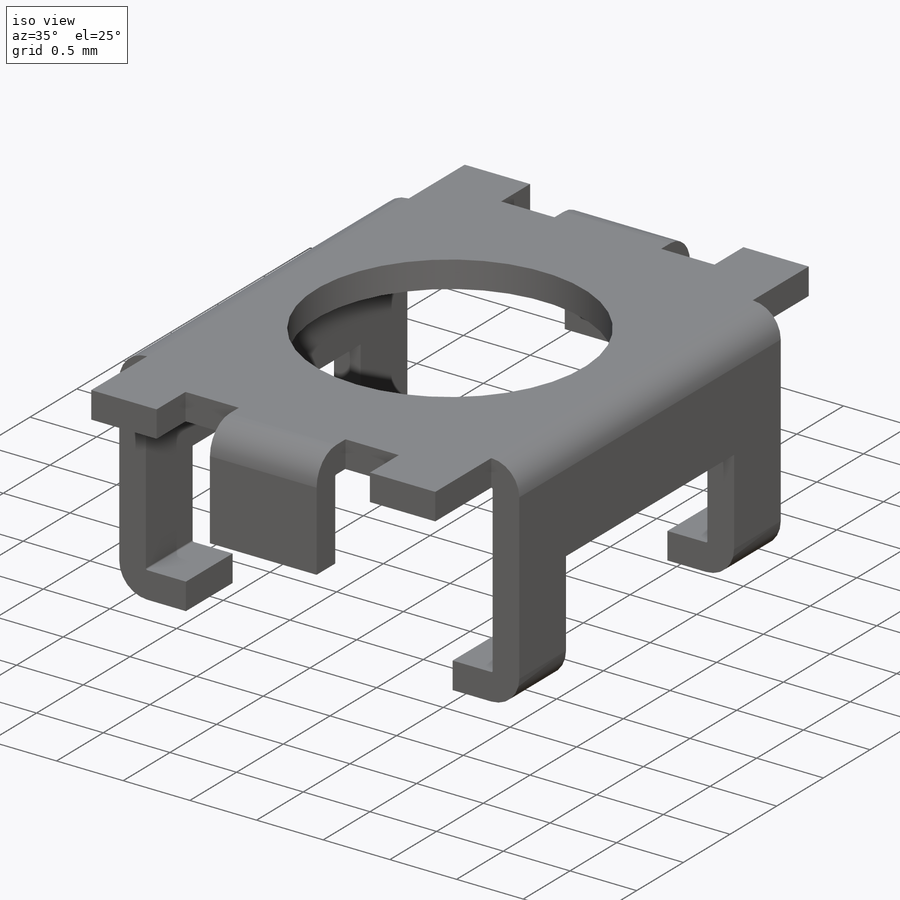
[diagram: iso view]
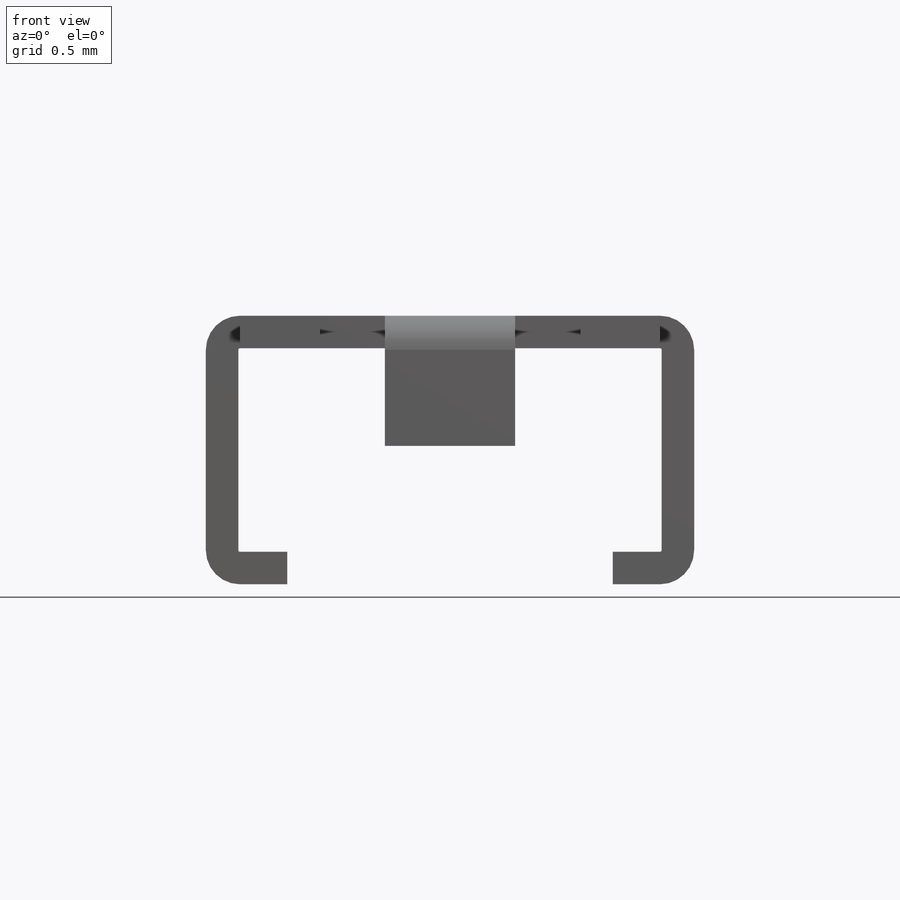
[diagram: front view]
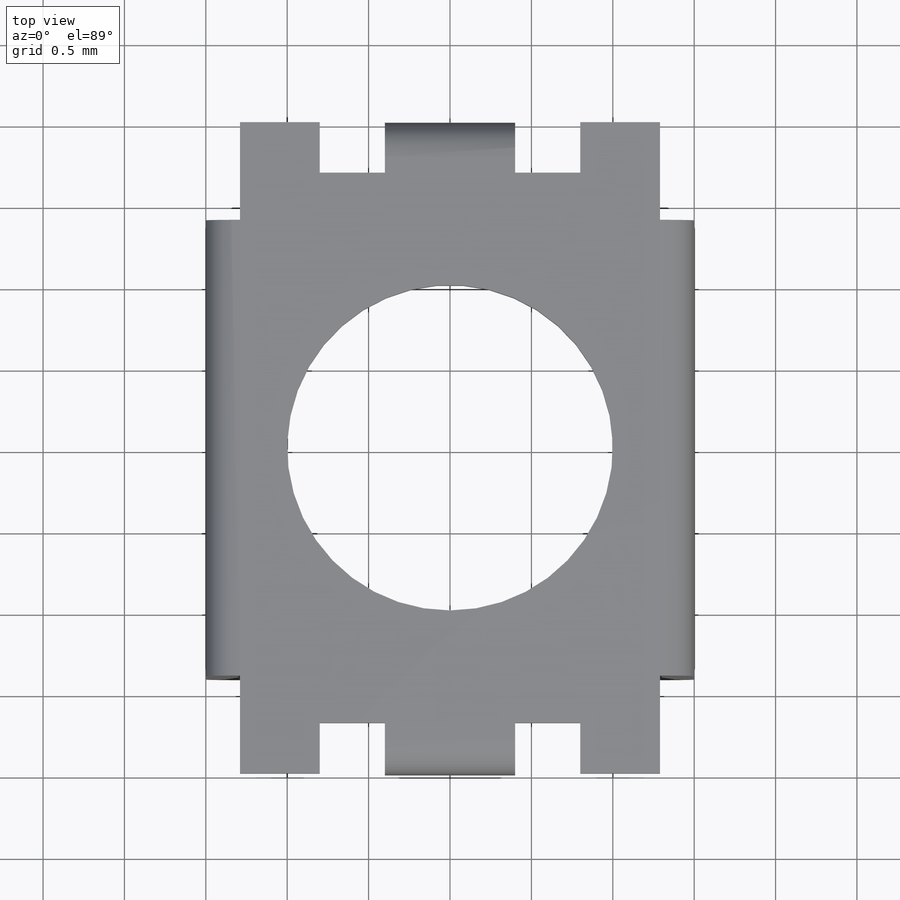
[diagram: top view]
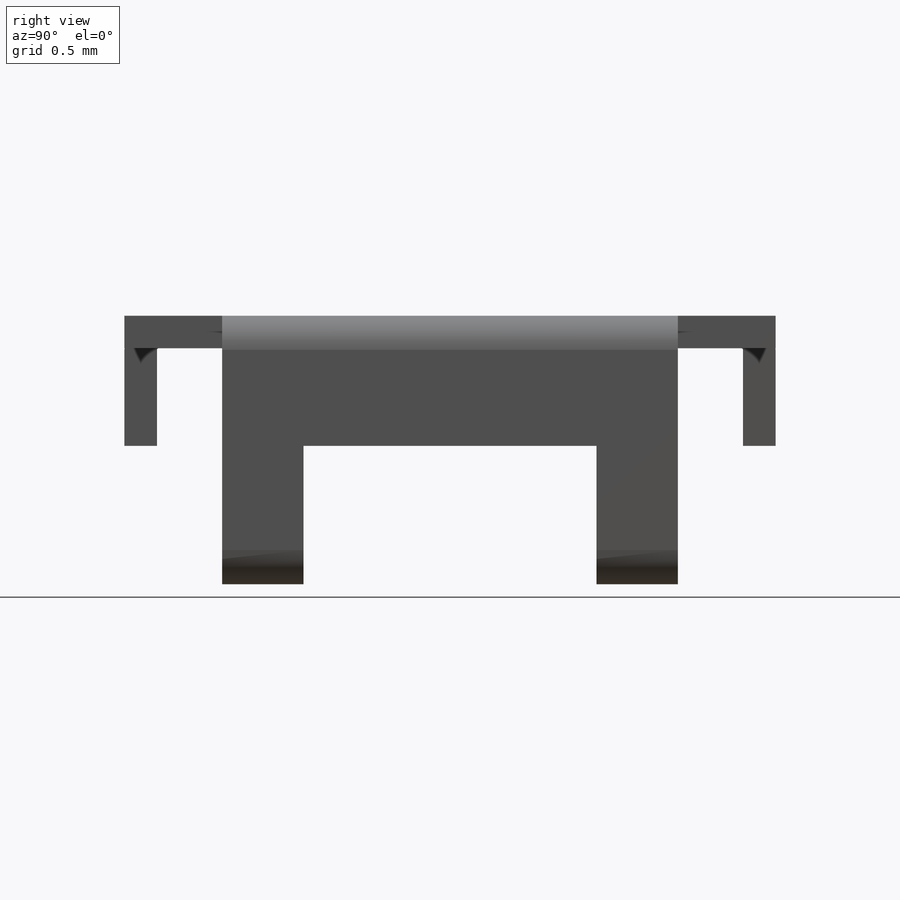
[diagram: right view]
SOLIDWORKS PART (.sldprt)
format: sldprt  version: not decoded by parser v0  size: 670,208 bytes
history: native  units: mm
features: sketch x11, sheet_metal_op x7, cut_extrude x2, material x1 + 6 further entries (+11 scaffold rows collapsed; 1 parser-record rows omitted)
feature tree (39):
  scaffold x11  (default folders/planes/origin — collapsed)
  material  "201 Annealed Stainless Steel (SS)"
  sketch  "Sketch1"  dims[D1=4.0mm D2=2.0mm D3=3.0mm D4=1.5mm]
  sheet_metal_op  "Sheet-Metal1"
  sheet_metal_op  "Base-Flange1"
  sketch  "Sketch6"  dims[D1=0.4mm D2=0.8mm]
  sketch  "Sketch8"  dims[D1=0.01mm D4=90.0deg D5=1.0 D8=0.1mm D9=0.1mm]
  sheet_metal_op  "EdgeBend2"  Edge-Flange2=0
  sketch  "Sketch13"  dims[D1=1.4mm D2=2.8mm]
  sketch  "Sketch14"
  sheet_metal_op  "EdgeBend3"
  sheet_metal_op  "EdgeBend4"  Edge-Flange3=0
  sketch  "Sketch21"
  sketch  "Sketch22"
  sheet_metal_op  "EdgeBend5"
  sheet_metal_op  "EdgeBend6"
  sketch  "Sketch23"  dims[D1=1.8mm D2=0.9mm D3=0.8mm D4=0.5mm]
  cut_extrude  "Cut-Extrude1"  Depth=10mm
  sketch  "Sketch24"  dims[D1=2.0mm]
  cut_extrude  "Cut-Extrude2"  Depth=10mm
  "Flat-Pattern1"
  sketch  "Bend-Lines1"
  sketch  "Bounding-Box1"
  parser-record x1  (decoder bookkeeping rows leaked as tree rows — omitted from the tree; the rows remain in map.json)
  "Flatten-<EdgeBend2>1"
  "Flatten-<EdgeBend3>1"
  "Flatten-<EdgeBend4>1"
  "Flatten-<EdgeBend5>1"
  "Flatten-<EdgeBend6>1"
decode coverage: 10 of 20 modeling features carry decoded parameters; 6 rows unclassified (native names shown)
note: suppression state not decoded; provenance and decode notes live in map.json
